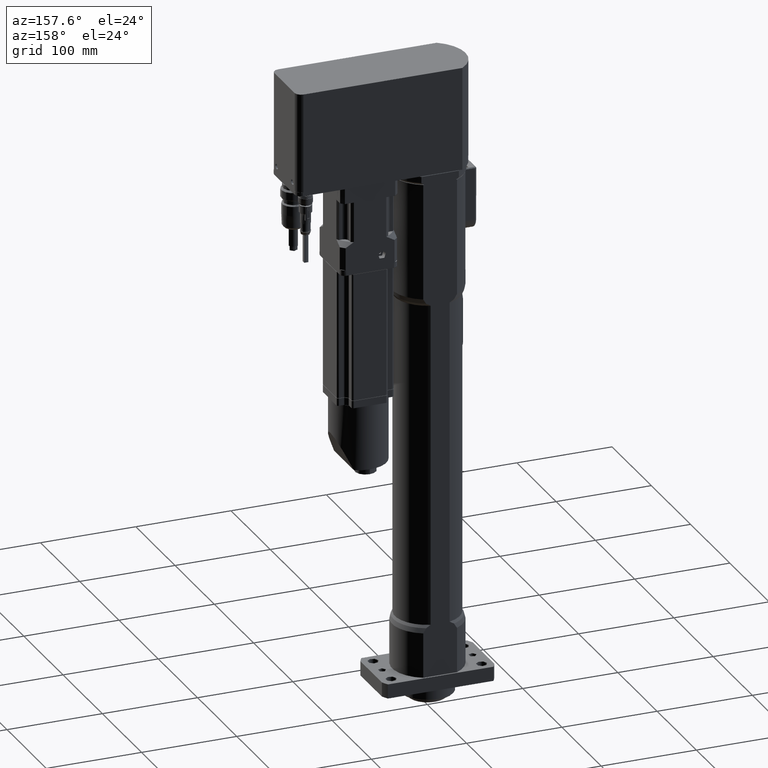
[diagram: clean part render]
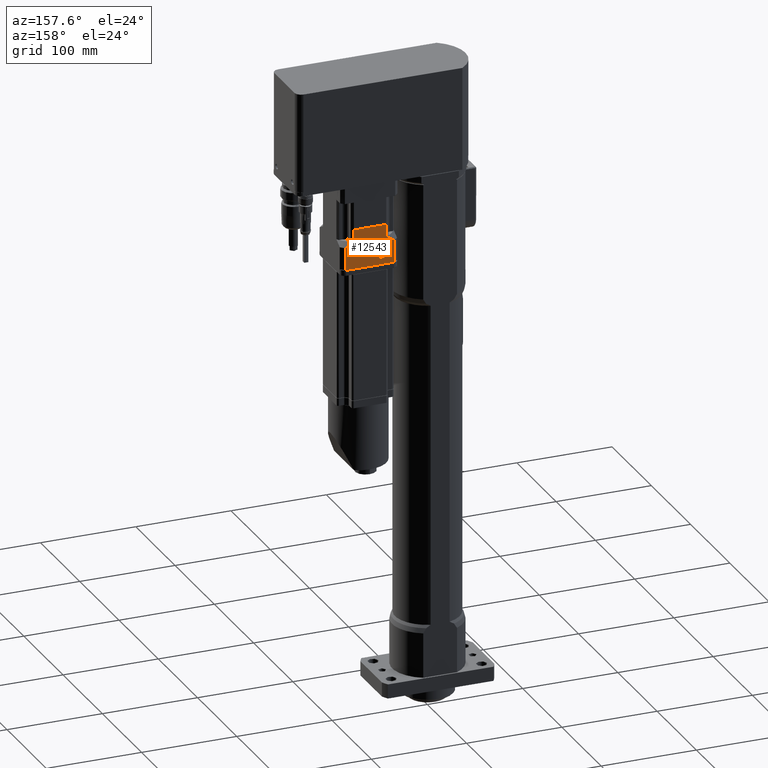
[diagram: same view with one face highlighted and labeled with its STEP entity id]
A machine part, auxiliary view. The second image highlights one B-rep face of the part: STEP entity #12543.
In plain terms, the highlighted planar face has unit normal (0, 1, -0).
Its self-contained STEP definition (entity closure, byte-faithful):
#29=(
BOUNDED_CURVE()
B_SPLINE_CURVE(2,(#22802,#22803,#22804),.UNSPECIFIED.,.F.,.F.)
B_SPLINE_CURVE_WITH_KNOTS((3,3),(-10.6524120970008,-9.4942813080497),
 .UNSPECIFIED.)
CURVE()
GEOMETRIC_REPRESENTATION_ITEM()
RATIONAL_B_SPLINE_CURVE((1.35251798561204,1.41367336988718,1.45736434108529))
REPRESENTATION_ITEM('')
);
#30=(
BOUNDED_CURVE()
B_SPLINE_CURVE(2,(#22810,#22811,#22812),.UNSPECIFIED.,.F.,.F.)
B_SPLINE_CURVE_WITH_KNOTS((3,3),(-3.69965669392681,-2.54152590497577),
 .UNSPECIFIED.)
CURVE()
GEOMETRIC_REPRESENTATION_ITEM()
RATIONAL_B_SPLINE_CURVE((1.45736434108529,1.41367336988718,1.35251798561204))
REPRESENTATION_ITEM('')
);
#771=LINE('',#22712,#1707);
#775=LINE('',#22735,#1711);
#776=LINE('',#22740,#1712);
#788=LINE('',#22843,#1724);
#826=LINE('',#22955,#1762);
#827=LINE('',#22959,#1763);
#828=LINE('',#22961,#1764);
#829=LINE('',#22962,#1765);
#1707=VECTOR('',#16545,50.);
#1711=VECTOR('',#16575,0.695330315060634);
#1712=VECTOR('',#16582,0.695330315059373);
#1724=VECTOR('',#16662,23.5);
#1762=VECTOR('',#16780,23.5);
#1763=VECTOR('',#16785,13.);
#1764=VECTOR('',#16786,34.0734500748);
#1765=VECTOR('',#16787,13.);
#2510=PLANE('',#13822);
#2748=FACE_BOUND('',#4197,.T.);
#3326=FACE_OUTER_BOUND('',#4196,.T.);
#4196=EDGE_LOOP('',(#10248,#10249,#10250,#10251,#10252,#10253,#10254,#10255,
#10256,#10257));
#4197=EDGE_LOOP('',(#10258));
#4963=CIRCLE('',#13823,4.35);
#5867=VERTEX_POINT('',#22705);
#5868=VERTEX_POINT('',#22710);
#5874=VERTEX_POINT('',#22734);
#5875=VERTEX_POINT('',#22738);
#5894=VERTEX_POINT('',#22793);
#5896=VERTEX_POINT('',#22800);
#5897=VERTEX_POINT('',#22806);
#5899=VERTEX_POINT('',#22809);
#5943=VERTEX_POINT('',#22958);
#5944=VERTEX_POINT('',#22960);
#5945=VERTEX_POINT('',#22963);
#7368=EDGE_CURVE('',#5868,#5867,#771,.T.);
#7378=EDGE_CURVE('',#5867,#5874,#775,.T.);
#7381=EDGE_CURVE('',#5875,#5868,#776,.T.);
#7408=EDGE_CURVE('',#5894,#5896,#29,.T.);
#7410=EDGE_CURVE('',#5899,#5897,#30,.T.);
#7423=EDGE_CURVE('',#5894,#5875,#788,.T.);
#7476=EDGE_CURVE('',#5897,#5874,#826,.T.);
#7477=EDGE_CURVE('',#5943,#5896,#827,.T.);
#7478=EDGE_CURVE('',#5943,#5944,#828,.T.);
#7479=EDGE_CURVE('',#5944,#5899,#829,.T.);
#7480=EDGE_CURVE('',#5945,#5945,#4963,.T.);
#10248=ORIENTED_EDGE('',*,*,#7381,.F.);
#10249=ORIENTED_EDGE('',*,*,#7423,.F.);
#10250=ORIENTED_EDGE('',*,*,#7408,.T.);
#10251=ORIENTED_EDGE('',*,*,#7477,.F.);
#10252=ORIENTED_EDGE('',*,*,#7478,.T.);
#10253=ORIENTED_EDGE('',*,*,#7479,.T.);
#10254=ORIENTED_EDGE('',*,*,#7410,.T.);
#10255=ORIENTED_EDGE('',*,*,#7476,.T.);
#10256=ORIENTED_EDGE('',*,*,#7378,.F.);
#10257=ORIENTED_EDGE('',*,*,#7368,.F.);
#10258=ORIENTED_EDGE('',*,*,#7480,.F.);
#12543=ADVANCED_FACE('',(#3326,#2748),#2510,.T.);
#13822=AXIS2_PLACEMENT_3D('',#22957,#16783,#16784);
#13823=AXIS2_PLACEMENT_3D('',#22964,#16788,#16789);
#16545=DIRECTION('',(-1.,1.70828439083748E-15,-6.12864908203916E-16));
#16575=DIRECTION('',(-1.,1.70828439083748E-15,-6.12864908203916E-16));
#16582=DIRECTION('',(-1.,1.70828439083748E-15,-6.12864908203916E-16));
#16662=DIRECTION('',(6.12864908203916E-16,3.94430452610506E-31,-1.));
#16780=DIRECTION('',(6.12864908203916E-16,3.94430452610506E-31,-1.));
#16783=DIRECTION('center_axis',(-1.70828439083748E-15,-1.,-1.36818063249271E-30));
#16784=DIRECTION('ref_axis',(-1.,0.,0.));
#16785=DIRECTION('',(6.12864908203916E-16,3.94430452610506E-31,-1.));
#16786=DIRECTION('',(-1.,1.67849944170064E-16,-5.40621472491078E-16));
#16787=DIRECTION('',(6.12864908203916E-16,3.94430452610506E-31,-1.));
#16788=DIRECTION('center_axis',(-1.70828439083748E-15,-1.,-1.36818063249271E-30));
#16789=DIRECTION('ref_axis',(6.12864908203916E-16,3.21233076115915E-31,
-1.));
#22705=CARTESIAN_POINT('',(-97.4999999999996,-29.9999999999999,374.500000000001));
#22710=CARTESIAN_POINT('',(-47.4999999999996,-29.9999999999999,374.500000000001));
#22712=CARTESIAN_POINT('',(-46.8046696849402,-30.,374.5));
#22734=CARTESIAN_POINT('',(-98.1953303150602,-29.9999999999999,374.5));
#22735=CARTESIAN_POINT('',(-46.8046696849402,-30.,374.5));
#22738=CARTESIAN_POINT('',(-46.8046696849402,-30.,374.5));
#22740=CARTESIAN_POINT('',(-46.8046696849402,-30.,374.5));
#22793=CARTESIAN_POINT('',(-46.8046696849403,-30.,398.));
#22800=CARTESIAN_POINT('',(-55.4632749626003,-30.,403.));
#22802=CARTESIAN_POINT('Ctrl Pts',(-46.8046696849828,-30.,398.000000000028));
#22803=CARTESIAN_POINT('Ctrl Pts',(-51.4264927723587,-30.,401.006563819971));
#22804=CARTESIAN_POINT('Ctrl Pts',(-55.4632749626011,-30.,403.000000000001));
#22806=CARTESIAN_POINT('',(-98.1953303150603,-29.9999999999999,398.));
#22809=CARTESIAN_POINT('',(-89.5367250374002,-29.9999999999999,403.));
#22810=CARTESIAN_POINT('Ctrl Pts',(-89.5367250373994,-29.9999999999999,
403.000000000001));
#22811=CARTESIAN_POINT('Ctrl Pts',(-93.5735072276418,-29.9999999999999,
401.006563819971));
#22812=CARTESIAN_POINT('Ctrl Pts',(-98.1953303150177,-29.9999999999999,
398.000000000028));
#22843=CARTESIAN_POINT('',(-46.8046696849403,-30.,398.));
#22955=CARTESIAN_POINT('',(-98.1953303150603,-29.9999999999999,398.));
#22957=CARTESIAN_POINT('Origin',(-55.4632749626003,-30.,416.));
#22958=CARTESIAN_POINT('',(-55.4632749626002,-30.,416.));
#22959=CARTESIAN_POINT('',(-55.4632749626003,-30.,416.));
#22960=CARTESIAN_POINT('',(-89.5367250374002,-30.,416.));
#22961=CARTESIAN_POINT('',(-55.4632749626002,-30.,416.));
#22962=CARTESIAN_POINT('',(-89.5367250374003,-29.9999999999999,416.));
#22963=CARTESIAN_POINT('',(-60.0000000000002,-30.,388.85));
#22964=CARTESIAN_POINT('Origin',(-60.0000000000002,-30.,384.5));